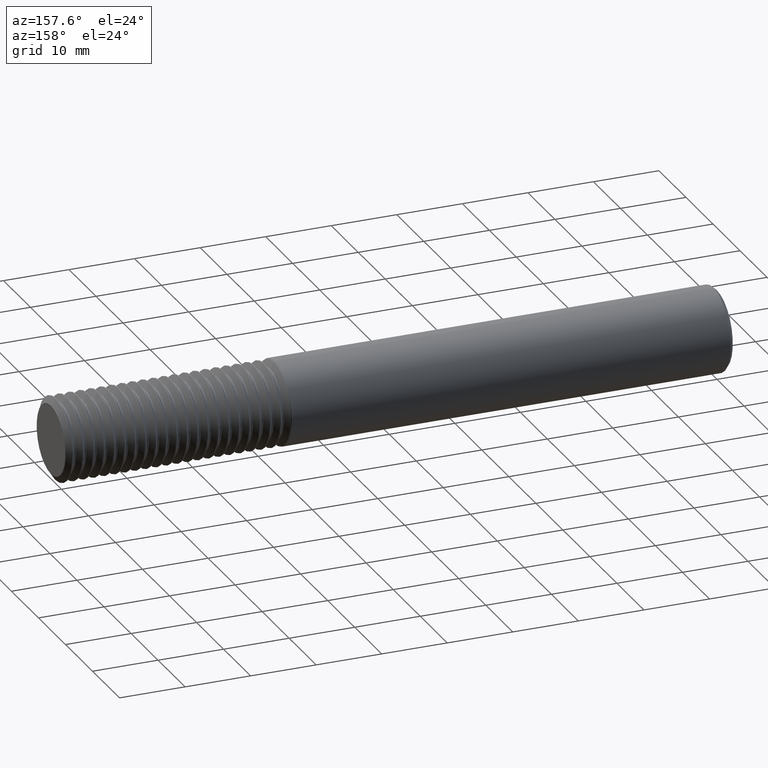
[diagram: clean part render]
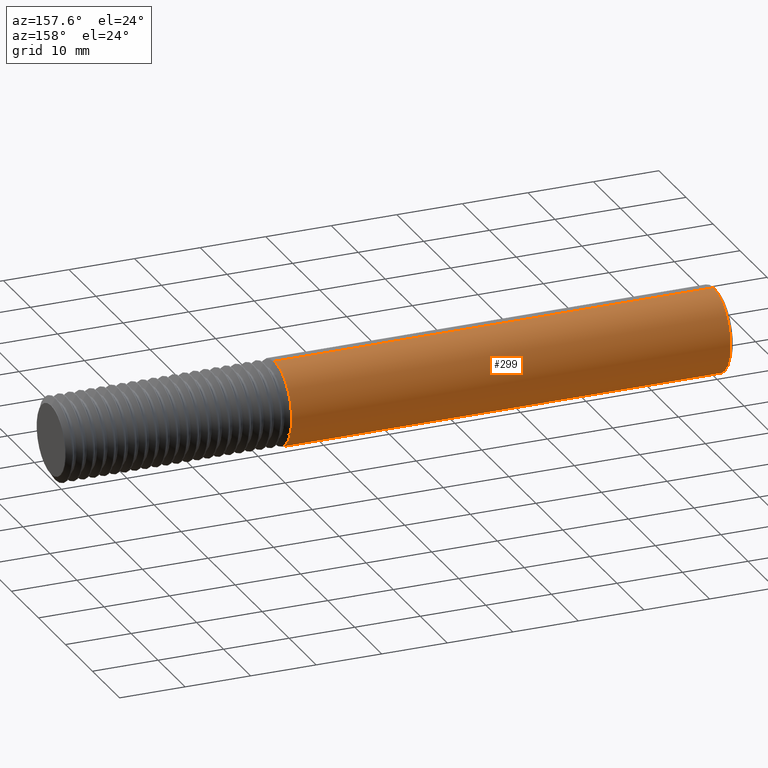
[diagram: same view with one face highlighted and labeled with its STEP entity id]
A machine part, auxiliary view. The second image highlights one B-rep face of the part: STEP entity #299.
In plain terms, the highlighted cylindrical surface (partial cylindrical patch) has radius 6.3462 mm, axis along (1, -0, -0).
Its self-contained STEP definition (entity closure, byte-faithful):
#237 = CIRCLE ( 'NONE', #3516, 0.2498499999999999888 ) ;
#253 = LINE ( 'NONE', #1636, #3467 ) ;
#299 = ADVANCED_FACE ( 'NONE', ( #436 ), #510, .T. ) ;
#418 = ORIENTED_EDGE ( 'NONE', *, *, #3843, .T. ) ;
#436 = FACE_OUTER_BOUND ( 'NONE', #500, .T. ) ;
#500 = EDGE_LOOP ( 'NONE', ( #418, #3129, #3632, #4313 ) ) ;
#510 = CYLINDRICAL_SURFACE ( 'NONE', #4122, 0.2498499999999999888 ) ;
#841 = VERTEX_POINT ( 'NONE', #2874 ) ;
#957 = CARTESIAN_POINT ( 'NONE',  ( 4.000000000000000000, 0.000000000000000000, -0.2498499999999999888 ) ) ;
#1108 = CARTESIAN_POINT ( 'NONE',  ( 0.01999999999999978531, 0.000000000000000000, -0.2498499999999999888 ) ) ;
#1636 = CARTESIAN_POINT ( 'NONE',  ( 4.000000000000000000, 3.059780027669661931E-17, 0.2498499999999999888 ) ) ;
#1864 = DIRECTION ( 'NONE',  ( 1.000000000000000000, -0.000000000000000000, -0.000000000000000000 ) ) ;
#1892 = AXIS2_PLACEMENT_3D ( 'NONE', #3385, #2359, #2027 ) ;
#1932 = DIRECTION ( 'NONE',  ( 1.000000000000000000, -0.000000000000000000, -0.000000000000000000 ) ) ;
#1952 = VERTEX_POINT ( 'NONE', #2259 ) ;
#2027 = DIRECTION ( 'NONE',  ( 0.000000000000000000, 0.000000000000000000, -1.000000000000000000 ) ) ;
#2069 = VERTEX_POINT ( 'NONE', #3093 ) ;
#2083 = EDGE_CURVE ( 'NONE', #2612, #1952, #4428, .T. ) ;
#2129 = DIRECTION ( 'NONE',  ( 0.000000000000000000, 0.000000000000000000, 1.000000000000000000 ) ) ;
#2131 = VECTOR ( 'NONE', #1932, 39.37007874015748143 ) ;
#2259 = CARTESIAN_POINT ( 'NONE',  ( 2.657649999999999402, 0.000000000000000000, -0.2498499999999999888 ) ) ;
#2342 = DIRECTION ( 'NONE',  ( 1.000000000000000000, -0.000000000000000000, -0.000000000000000000 ) ) ;
#2359 = DIRECTION ( 'NONE',  ( 1.000000000000000000, -0.000000000000000000, -0.000000000000000000 ) ) ;
#2487 = CIRCLE ( 'NONE', #1892, 0.2498499999999999888 ) ;
#2514 = EDGE_CURVE ( 'NONE', #2069, #841, #253, .T. ) ;
#2611 = DIRECTION ( 'NONE',  ( 0.000000000000000000, 0.000000000000000000, -1.000000000000000000 ) ) ;
#2612 = VERTEX_POINT ( 'NONE', #1108 ) ;
#2851 = CARTESIAN_POINT ( 'NONE',  ( 0.01999999999999978531, 0.000000000000000000, 0.000000000000000000 ) ) ;
#2874 = CARTESIAN_POINT ( 'NONE',  ( 2.657649999999999402, 3.059780027669661931E-17, 0.2498499999999999888 ) ) ;
#2956 = EDGE_CURVE ( 'NONE', #1952, #841, #2487, .T. ) ;
#3093 = CARTESIAN_POINT ( 'NONE',  ( 0.01999999999999978531, 3.059780027669661931E-17, 0.2498499999999999888 ) ) ;
#3129 = ORIENTED_EDGE ( 'NONE', *, *, #2514, .T. ) ;
#3385 = CARTESIAN_POINT ( 'NONE',  ( 2.657649999999999402, 0.000000000000000000, 0.000000000000000000 ) ) ;
#3467 = VECTOR ( 'NONE', #2342, 39.37007874015748143 ) ;
#3516 = AXIS2_PLACEMENT_3D ( 'NONE', #2851, #4605, #2129 ) ;
#3632 = ORIENTED_EDGE ( 'NONE', *, *, #2956, .F. ) ;
#3843 = EDGE_CURVE ( 'NONE', #2612, #2069, #237, .T. ) ;
#4122 = AXIS2_PLACEMENT_3D ( 'NONE', #4408, #1864, #2611 ) ;
#4313 = ORIENTED_EDGE ( 'NONE', *, *, #2083, .F. ) ;
#4408 = CARTESIAN_POINT ( 'NONE',  ( 4.000000000000000000, 0.000000000000000000, 0.000000000000000000 ) ) ;
#4428 = LINE ( 'NONE', #957, #2131 ) ;
#4605 = DIRECTION ( 'NONE',  ( 1.000000000000000000, -0.000000000000000000, -0.000000000000000000 ) ) ;